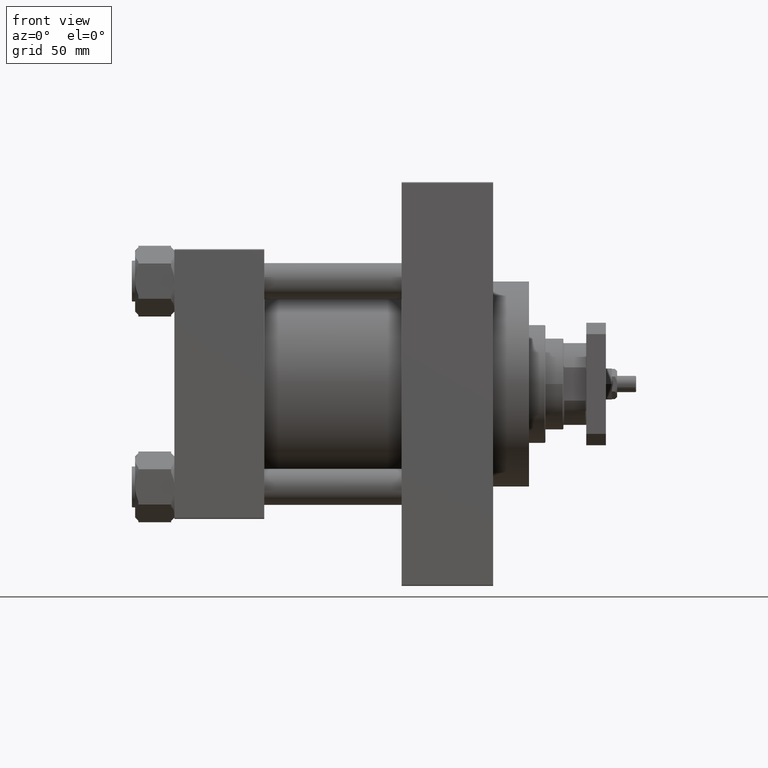
[diagram: clean part render]
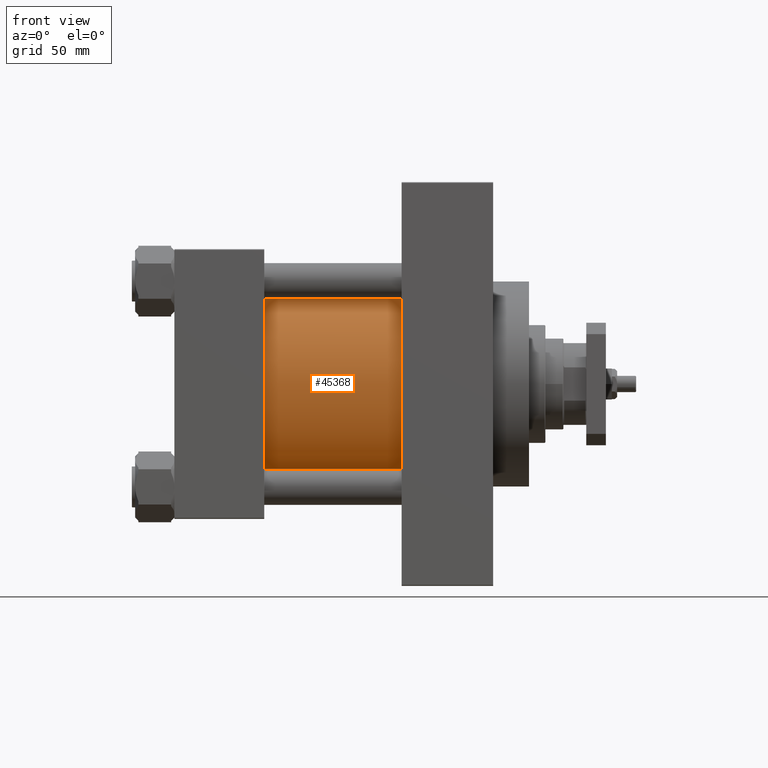
[diagram: same view with one face highlighted and labeled with its STEP entity id]
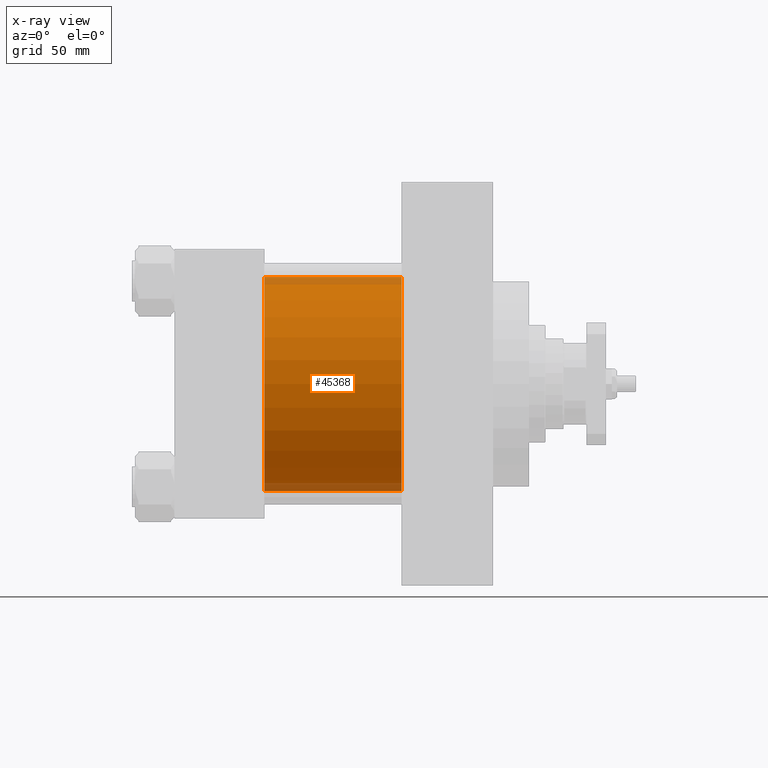
[diagram: x-ray of the same camera — body ghosted, the highlighted face saturated]
A machine part, front view. The second image highlights one B-rep face of the part: STEP entity #45368.
The next image is the same camera in x-ray: the body ghosted, the highlighted face saturated — about 7% of this face is hidden behind the body in this view.
In plain terms, the highlighted cylindrical surface (partial cylindrical patch) has radius 65.5 mm, axis along (-1, -0, -0).
Its self-contained STEP definition (entity closure, byte-faithful):
#586 = DIRECTION ( 'NONE',  ( 1.000000000000000000, 0.000000000000000000, 0.000000000000000000 ) ) ;
#3088 = CARTESIAN_POINT ( 'NONE',  ( 54.99999999999999289, 5.419351320449953395E-15, -65.50000000000001421 ) ) ;
#3178 = CIRCLE ( 'NONE', #20393, 65.50000000000001421 ) ;
#3588 = DIRECTION ( 'NONE',  ( -1.000000000000000000, -0.000000000000000000, -0.000000000000000000 ) ) ;
#4173 = CARTESIAN_POINT ( 'NONE',  ( 139.0000000000000000, -2.602085213965210642E-15, 65.50000000000001421 ) ) ;
#5766 = CARTESIAN_POINT ( 'NONE',  ( 54.99999999999999289, -2.602085213965210642E-15, 0.000000000000000000 ) ) ;
#6021 = VERTEX_POINT ( 'NONE', #3088 ) ;
#6661 = DIRECTION ( 'NONE',  ( -1.000000000000000000, -0.000000000000000000, -0.000000000000000000 ) ) ;
#7871 = CARTESIAN_POINT ( 'NONE',  ( 139.0000000000000000, -2.602085213965210642E-15, 0.000000000000000000 ) ) ;
#7887 = CYLINDRICAL_SURFACE ( 'NONE', #23543, 65.50000000000001421 ) ;
#8762 = ORIENTED_EDGE ( 'NONE', *, *, #29198, .F. ) ;
#11661 = FACE_OUTER_BOUND ( 'NONE', #37035, .T. ) ;
#12395 = AXIS2_PLACEMENT_3D ( 'NONE', #5766, #26275, #43028 ) ;
#13967 = CARTESIAN_POINT ( 'NONE',  ( 139.0000000000000000, -2.602085213965210642E-15, 65.50000000000001421 ) ) ;
#17127 = CARTESIAN_POINT ( 'NONE',  ( 54.99999999999999289, -2.602085213965210642E-15, 65.50000000000001421 ) ) ;
#17403 = CARTESIAN_POINT ( 'NONE',  ( 139.0000000000000000, 5.419351320449953395E-15, -65.50000000000001421 ) ) ;
#17589 = CARTESIAN_POINT ( 'NONE',  ( 139.0000000000000000, 5.419351320449953395E-15, -65.50000000000001421 ) ) ;
#20393 = AXIS2_PLACEMENT_3D ( 'NONE', #7871, #586, #49981 ) ;
#21443 = LINE ( 'NONE', #17403, #49507 ) ;
#23543 = AXIS2_PLACEMENT_3D ( 'NONE', #24086, #3588, #52191 ) ;
#24086 = CARTESIAN_POINT ( 'NONE',  ( 139.0000000000000000, -2.602085213965210642E-15, 0.000000000000000000 ) ) ;
#25606 = ORIENTED_EDGE ( 'NONE', *, *, #32493, .T. ) ;
#26275 = DIRECTION ( 'NONE',  ( 1.000000000000000000, 0.000000000000000000, 0.000000000000000000 ) ) ;
#29198 = EDGE_CURVE ( 'NONE', #44382, #46377, #3178, .T. ) ;
#29659 = VERTEX_POINT ( 'NONE', #17127 ) ;
#32493 = EDGE_CURVE ( 'NONE', #44382, #29659, #47735, .T. ) ;
#35672 = CIRCLE ( 'NONE', #12395, 65.50000000000001421 ) ;
#37035 = EDGE_LOOP ( 'NONE', ( #43014, #8762, #25606, #45350 ) ) ;
#43014 = ORIENTED_EDGE ( 'NONE', *, *, #47533, .F. ) ;
#43028 = DIRECTION ( 'NONE',  ( 0.000000000000000000, 0.000000000000000000, 1.000000000000000000 ) ) ;
#44382 = VERTEX_POINT ( 'NONE', #4173 ) ;
#45350 = ORIENTED_EDGE ( 'NONE', *, *, #47453, .T. ) ;
#45368 = ADVANCED_FACE ( 'NONE', ( #11661 ), #7887, .T. ) ;
#46296 = DIRECTION ( 'NONE',  ( -1.000000000000000000, -0.000000000000000000, -0.000000000000000000 ) ) ;
#46377 = VERTEX_POINT ( 'NONE', #17589 ) ;
#46382 = VECTOR ( 'NONE', #6661, 1000.000000000000000 ) ;
#47453 = EDGE_CURVE ( 'NONE', #29659, #6021, #35672, .T. ) ;
#47533 = EDGE_CURVE ( 'NONE', #46377, #6021, #21443, .T. ) ;
#47735 = LINE ( 'NONE', #13967, #46382 ) ;
#49507 = VECTOR ( 'NONE', #46296, 1000.000000000000000 ) ;
#49981 = DIRECTION ( 'NONE',  ( 0.000000000000000000, 0.000000000000000000, -1.000000000000000000 ) ) ;
#52191 = DIRECTION ( 'NONE',  ( 0.000000000000000000, 0.000000000000000000, 1.000000000000000000 ) ) ;